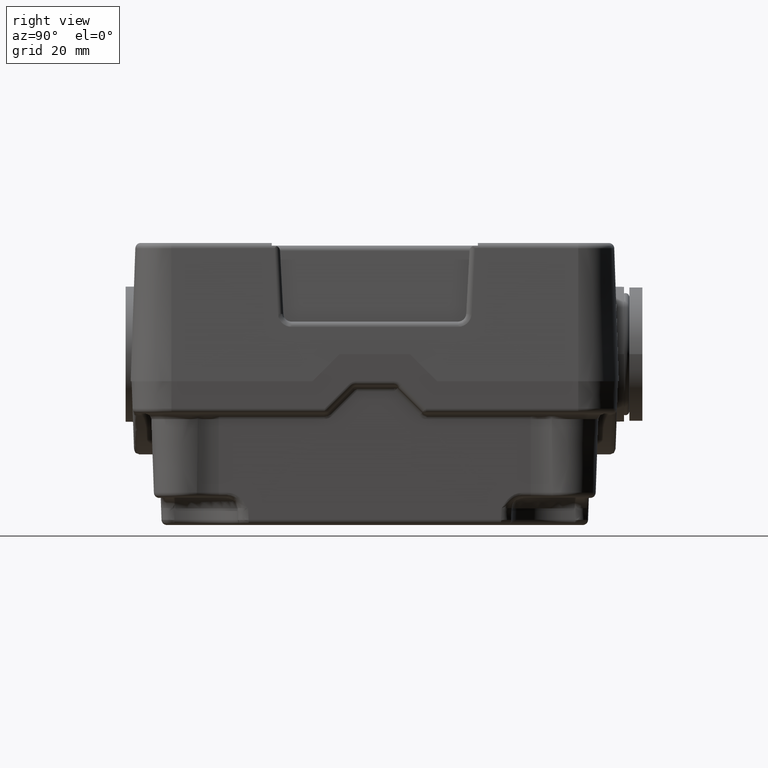
[diagram: clean part render]
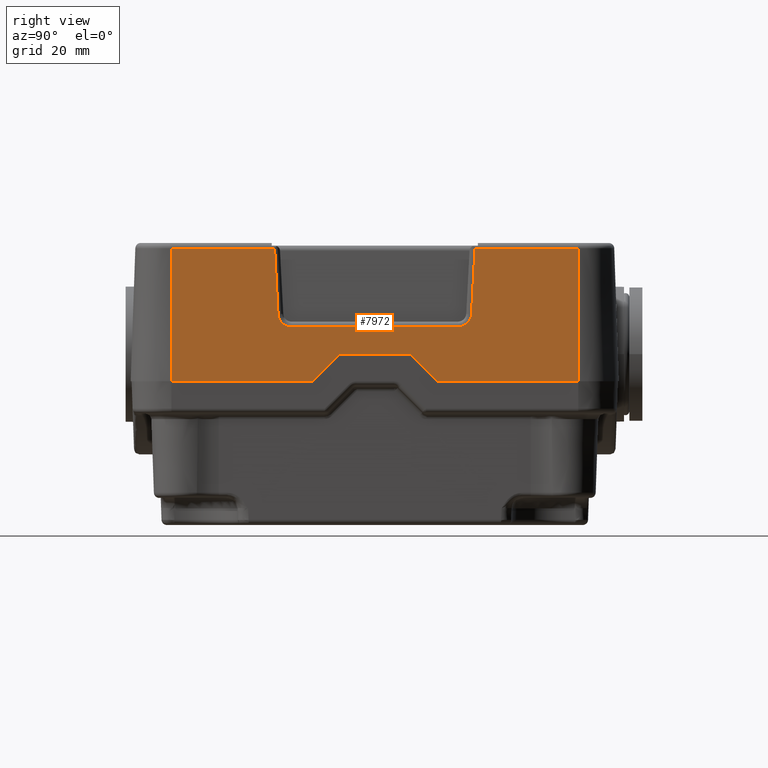
[diagram: same view with one face highlighted and labeled with its STEP entity id]
A machine part, right view. The second image highlights one B-rep face of the part: STEP entity #7972.
In plain terms, the highlighted planar face has unit normal (0.9994, -0, 0.0349).
Its self-contained STEP definition (entity closure, byte-faithful):
#5381=CARTESIAN_POINT('',(72.986153024442217,-47.108067806393315,-5.273559E-015));
#5382=VERTEX_POINT('',#5381);
#5389=CARTESIAN_POINT('',(72.986153024442203,-73.108067806393322,0.0));
#5390=VERTEX_POINT('',#5389);
#5391=CARTESIAN_POINT('',(72.986153024442203,-73.108067806393322,0.0));
#5392=DIRECTION('',(0.0,1.0,0.0));
#5393=VECTOR('',#5392,26.000000000000007);
#5394=LINE('',#5391,#5393);
#5395=EDGE_CURVE('',#5390,#5382,#5394,.T.);
#5494=CARTESIAN_POINT('',(72.811549176983462,-42.108067806393322,4.999999999999996));
#5495=VERTEX_POINT('',#5494);
#5502=CARTESIAN_POINT('',(72.986153024442217,-47.108067806393315,-5.273559E-015));
#5503=DIRECTION('',(-0.024685188407834,0.706891307583163,0.706891307583164));
#5504=VECTOR('',#5503,7.073223204702885);
#5505=LINE('',#5502,#5504);
#5506=EDGE_CURVE('',#5382,#5495,#5505,.T.);
#7671=CARTESIAN_POINT('',(72.986153024442217,1.891932193606674,0.0));
#7672=VERTEX_POINT('',#7671);
#7680=CARTESIAN_POINT('',(72.986153024442203,-24.108067806393322,-1.942890E-015));
#7681=VERTEX_POINT('',#7680);
#7682=CARTESIAN_POINT('',(72.986153024442203,-24.108067806393322,-1.942890E-015));
#7683=DIRECTION('',(0.0,1.0,0.0));
#7684=VECTOR('',#7683,25.999999999999996);
#7685=LINE('',#7682,#7684);
#7686=EDGE_CURVE('',#7681,#7672,#7685,.T.);
#7812=CARTESIAN_POINT('',(72.811549176983476,-29.108067806393322,4.999999999999997));
#7813=VERTEX_POINT('',#7812);
#7820=CARTESIAN_POINT('',(72.811549176983462,-42.108067806393322,4.999999999999996));
#7821=DIRECTION('',(0.0,1.0,0.0));
#7822=VECTOR('',#7821,13.0);
#7823=LINE('',#7820,#7822);
#7824=EDGE_CURVE('',#5495,#7813,#7823,.T.);
#7861=CARTESIAN_POINT('',(72.811549176983476,-29.108067806393322,4.999999999999997));
#7862=DIRECTION('',(0.024685188407830,0.706891307583164,-0.706891307583164));
#7863=VECTOR('',#7862,7.073223204702887);
#7864=LINE('',#7861,#7863);
#7865=EDGE_CURVE('',#7813,#7681,#7864,.T.);
#7888=CARTESIAN_POINT('',(72.986153024442217,1.891932193606674,0.0));
#7889=DIRECTION('',(0.999390827019096,-1.183516E-016,0.034899496702501));
#7890=DIRECTION('',(0.0,1.0,0.0));
#7891=AXIS2_PLACEMENT_3D('',#7888,#7889,#7890);
#7892=PLANE('',#7891);
#7893=ORIENTED_EDGE('',*,*,#5506,.T.);
#7894=ORIENTED_EDGE('',*,*,#7824,.T.);
#7895=ORIENTED_EDGE('',*,*,#7865,.T.);
#7896=ORIENTED_EDGE('',*,*,#7686,.T.);
#7897=CARTESIAN_POINT('',(72.129375454614674,1.891932193606678,24.534899496702497));
#7898=VERTEX_POINT('',#7897);
#7899=CARTESIAN_POINT('',(72.986153024442217,1.891932193606674,0.0));
#7900=DIRECTION('',(-0.034899496702501,1.718482E-016,0.999390827019096));
#7901=VECTOR('',#7900,24.549854604812879);
#7902=LINE('',#7899,#7901);
#7903=EDGE_CURVE('',#7672,#7898,#7902,.T.);
#7904=ORIENTED_EDGE('',*,*,#7903,.T.);
#7905=CARTESIAN_POINT('',(72.129375454614674,-17.132918587330632,24.534899496702501));
#7906=VERTEX_POINT('',#7905);
#7907=CARTESIAN_POINT('',(72.129375454614674,-17.132918587330632,24.534899496702501));
#7908=DIRECTION('',(0.0,1.0,0.0));
#7909=VECTOR('',#7908,19.024850780937310);
#7910=LINE('',#7907,#7909);
#7911=EDGE_CURVE('',#7906,#7898,#7910,.T.);
#7912=ORIENTED_EDGE('',*,*,#7911,.F.);
#7913=CARTESIAN_POINT('',(72.552993718175870,-17.768668966835492,12.404059606095149));
#7914=VERTEX_POINT('',#7913);
#7915=CARTESIAN_POINT('',(72.552993718175870,-17.768668966835492,12.404059606095149));
#7916=DIRECTION('',(-0.034851726289603,0.052304161838419,0.998022861375938));
#7917=VECTOR('',#7916,12.154871757028692);
#7918=LINE('',#7915,#7917);
#7919=EDGE_CURVE('',#7914,#7906,#7918,.T.);
#7920=ORIENTED_EDGE('',*,*,#7919,.F.);
#7921=CARTESIAN_POINT('',(72.635726612245008,-20.265242803721925,10.034899496702510));
#7922=VERTEX_POINT('',#7921);
#7923=CARTESIAN_POINT('',(72.548424688515638,-20.265242803721925,12.534899496702510));
#7924=DIRECTION('',(0.999390827019096,-1.183516E-016,0.034899496702501));
#7925=DIRECTION('',(0.034899496702501,1.220501E-014,-0.999390827019096));
#7926=AXIS2_PLACEMENT_3D('',#7923,#7924,#7925);
#7927=ELLIPSE('',#7926,2.501523860747054,2.500000000000000);
#7928=EDGE_CURVE('',#7922,#7914,#7927,.T.);
#7929=ORIENTED_EDGE('',*,*,#7928,.F.);
#7930=CARTESIAN_POINT('',(72.635726612245008,-50.950931283652132,10.034899496702510));
#7931=VERTEX_POINT('',#7930);
#7932=CARTESIAN_POINT('',(72.635726612245008,-50.950931283652132,10.034899496702510));
#7933=DIRECTION('',(0.0,1.0,0.0));
#7934=VECTOR('',#7933,30.685688479930207);
#7935=LINE('',#7932,#7934);
#7936=EDGE_CURVE('',#7931,#7922,#7935,.T.);
#7937=ORIENTED_EDGE('',*,*,#7936,.F.);
#7938=CARTESIAN_POINT('',(72.552993718175870,-53.447505120538565,12.404059606095149));
#7939=VERTEX_POINT('',#7938);
#7940=CARTESIAN_POINT('',(72.548424688515638,-50.950931283652132,12.534899496702510));
#7941=DIRECTION('',(0.999390827019096,-1.183516E-016,0.034899496702501));
#7942=DIRECTION('',(0.034899496702501,-1.220501E-014,-0.999390827019096));
#7943=AXIS2_PLACEMENT_3D('',#7940,#7941,#7942);
#7944=ELLIPSE('',#7943,2.501523860747054,2.500000000000000);
#7945=EDGE_CURVE('',#7939,#7931,#7944,.T.);
#7946=ORIENTED_EDGE('',*,*,#7945,.F.);
#7947=CARTESIAN_POINT('',(72.129375454614660,-54.083255500043428,24.534899496702501));
#7948=VERTEX_POINT('',#7947);
#7949=CARTESIAN_POINT('',(72.129375454614660,-54.083255500043428,24.534899496702501));
#7950=DIRECTION('',(0.034851726289605,0.052304161838419,-0.998022861375938));
#7951=VECTOR('',#7950,12.154871757028692);
#7952=LINE('',#7949,#7951);
#7953=EDGE_CURVE('',#7948,#7939,#7952,.T.);
#7954=ORIENTED_EDGE('',*,*,#7953,.F.);
#7955=CARTESIAN_POINT('',(72.129375454614660,-73.108067806393322,24.534899496702497));
#7956=VERTEX_POINT('',#7955);
#7957=CARTESIAN_POINT('',(72.129375454614660,-73.108067806393322,24.534899496702497));
#7958=DIRECTION('',(0.0,1.0,0.0));
#7959=VECTOR('',#7958,19.024812306349894);
#7960=LINE('',#7957,#7959);
#7961=EDGE_CURVE('',#7956,#7948,#7960,.T.);
#7962=ORIENTED_EDGE('',*,*,#7961,.F.);
#7963=CARTESIAN_POINT('',(72.986153024442203,-73.108067806393322,0.0));
#7964=DIRECTION('',(-0.034899496702501,0.0,0.999390827019096));
#7965=VECTOR('',#7964,24.549854604812879);
#7966=LINE('',#7963,#7965);
#7967=EDGE_CURVE('',#5390,#7956,#7966,.T.);
#7968=ORIENTED_EDGE('',*,*,#7967,.F.);
#7969=ORIENTED_EDGE('',*,*,#5395,.T.);
#7970=EDGE_LOOP('',(#7893,#7894,#7895,#7896,#7904,#7912,#7920,#7929,#7937,#7946,#7954,#7962,#7968,#7969));
#7971=FACE_OUTER_BOUND('',#7970,.T.);
#7972=ADVANCED_FACE('',(#7971),#7892,.T.);